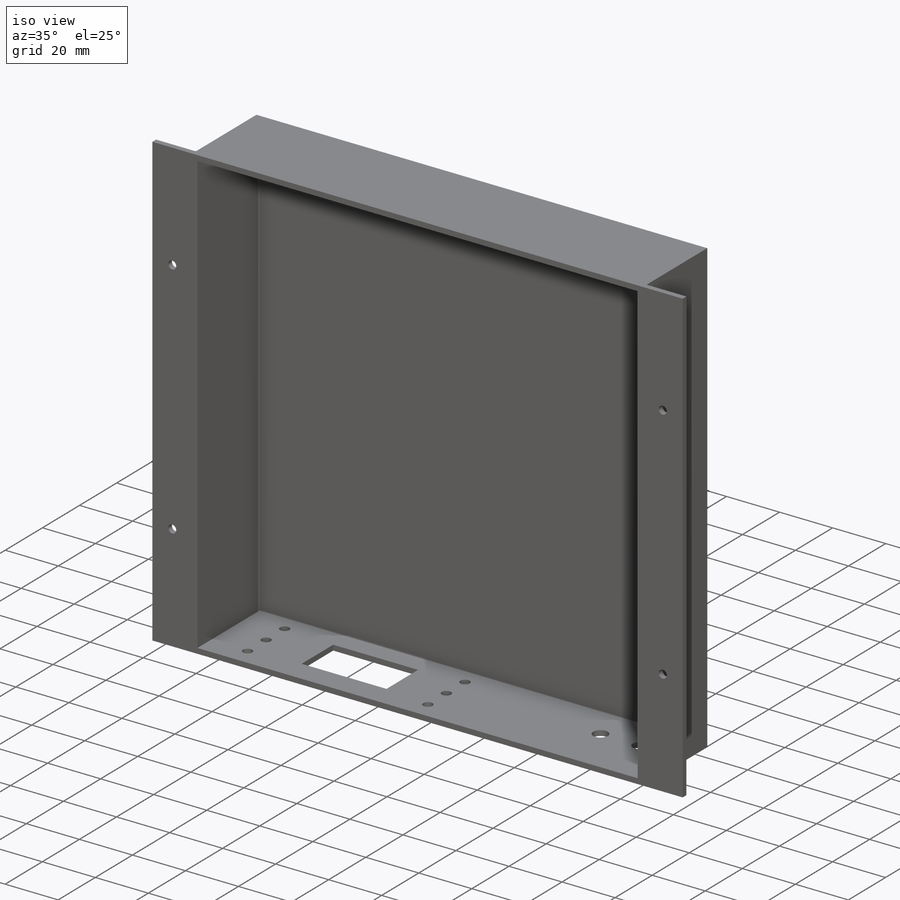
[diagram: iso view]
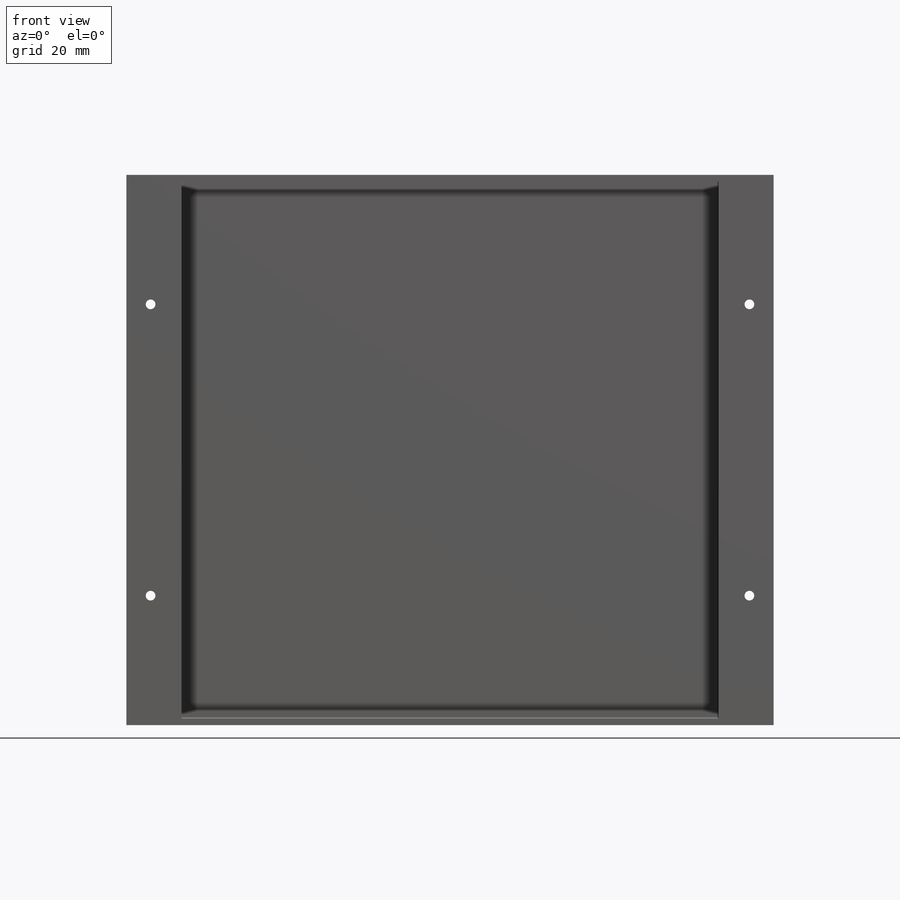
[diagram: front view]
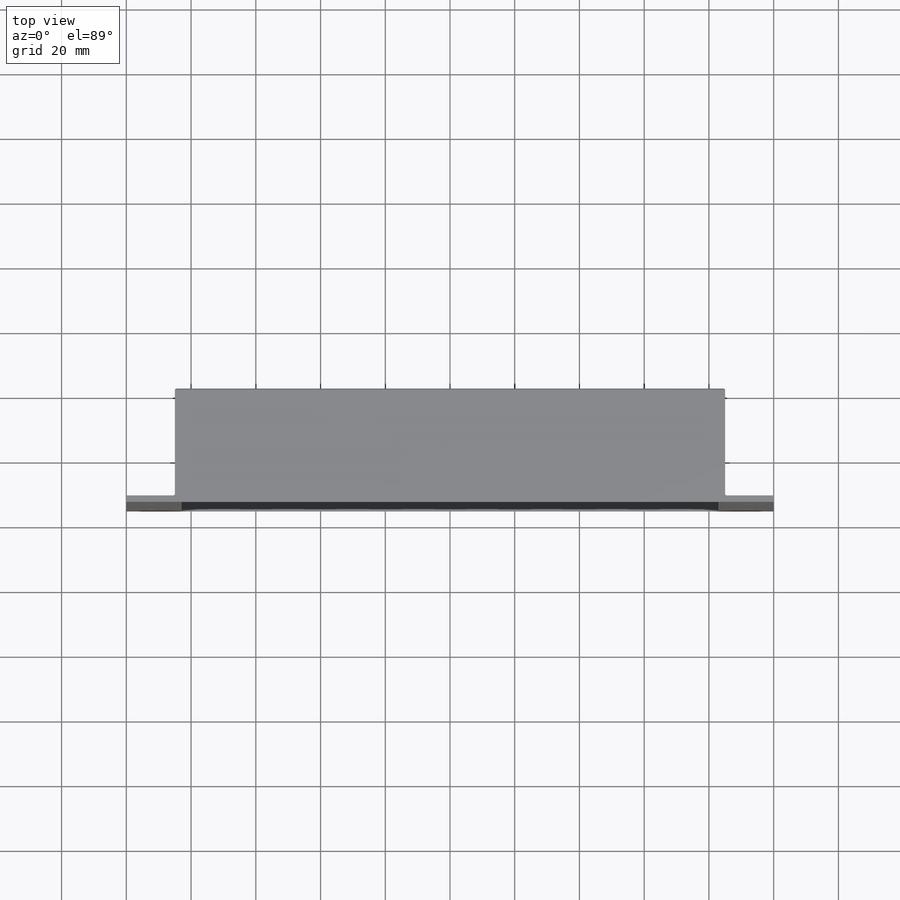
[diagram: top view]
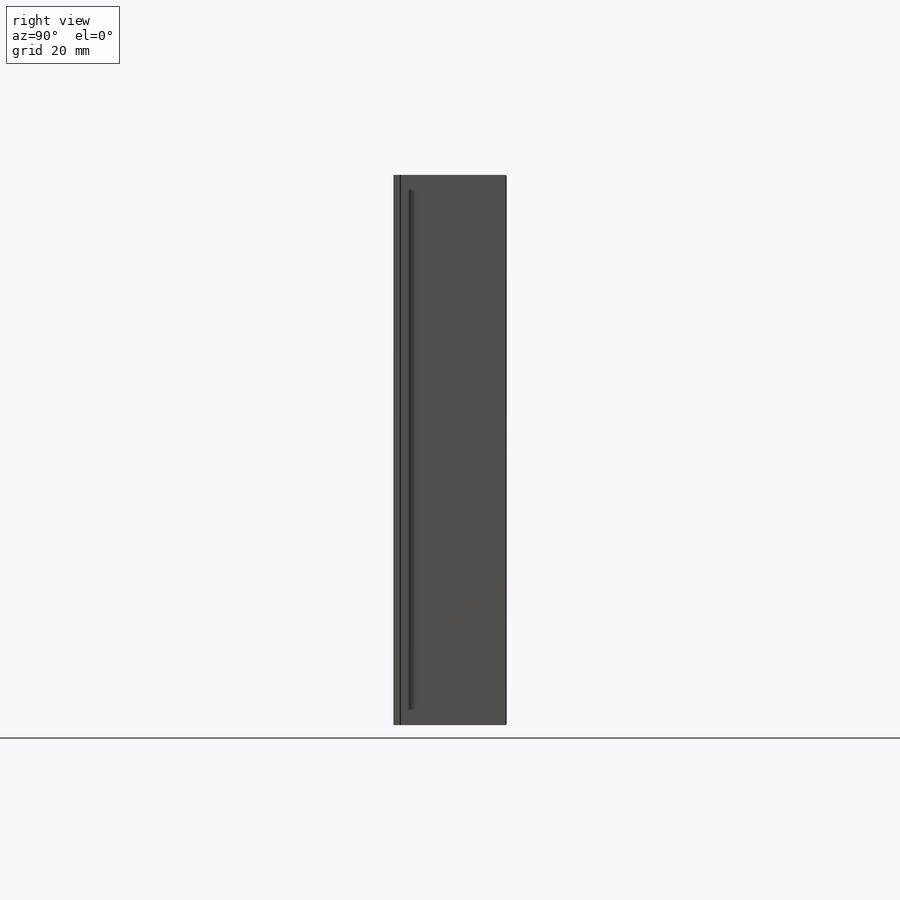
[diagram: right view]
SOLIDWORKS PART (.sldprt)
format: sldprt  version: not decoded by parser v0  size: 340,992 bytes
history: native  units: mm
features: sketch x9, extrude x3, cut_extrude x2, hole x2, material x1, fillet x1 (+16 scaffold rows collapsed)
feature tree (34):
  scaffold x16  (default folders/planes/origin — collapsed)
  material  "Material <not specified>"
  sketch  "Sketch1"  dims[D1=170.0mm D2=170.0mm]
  extrude  "Boss-Extrude1"  Depth=35mm
  sketch  "Sketch2"  dims[D1=2.0mm D2=2.0mm D3=2.0mm D4=2.0mm]
  cut_extrude  "Cut-Extrude1"  Depth=33mm
  sketch  "Sketch3"  dims[D1=2.0mm]
  extrude  "Boss-Extrude2"  Depth=15mm
  sketch  "Sketch4"  dims[D1=2.0mm]
  extrude  "Boss-Extrude3"  Depth=15mm
  hole  "Ø3.0 (3) Diameter Hole1"  Diameter=3mm Depth=100mm
  sketch  "Sketch6"  dims[D1=40.0mm D4=7.5mm D6=0.0mm D7=40.0mm D8=40.0mm D9=40.0mm D10=7.5mm D2=2.0 D3=2.0 D5=2.0]
  sketch  "Sketch5"  dims[hole-wizard template sketch: 47 standard entries collapsed; hole parameters kept: c15.Hole Depth=100.0mm c15.D3=~14.816244mm c15.Drill Angle=118.0deg]
  sketch  "Sketch7"  dims[c1.D6=5.5mm c1.D1=13.5mm c1.D2=16.0mm c1.D3=5.0mm c1.D4=30.0mm c1.D7=30.0mm c1.D8=15.0mm c2.D1=15.0mm c2.D2=32.0mm c2.D3=17.0mm c2.D4=9.0mm c2.D5=35.0mm c2.D9=9.0mm]
  cut_extrude  "Cut-Extrude2"  Depth=15mm
  fillet  "Fillet1"  Radius=0.5mm
  hole  "Ø3.5 (3.5) Diameter Hole1"  Diameter=3.5mm Depth=100mm
  sketch  "Sketch9"  dims[D1=19.0mm D2=2.0mm D4=2.0 D3=3.0]
  sketch  "Sketch8"  dims[hole-wizard template sketch: 46 standard entries collapsed; hole parameters kept: c15.Hole Dia.=3.5mm c15.Hole Depth=100.0mm c15.D3=~14.816244mm c15.Drill Angle=118.0deg]
decode coverage: 17 of 17 modeling features carry decoded parameters
note: ~ marks probable driven/reference dimensions
note: suppression state not decoded; provenance and decode notes live in map.json
